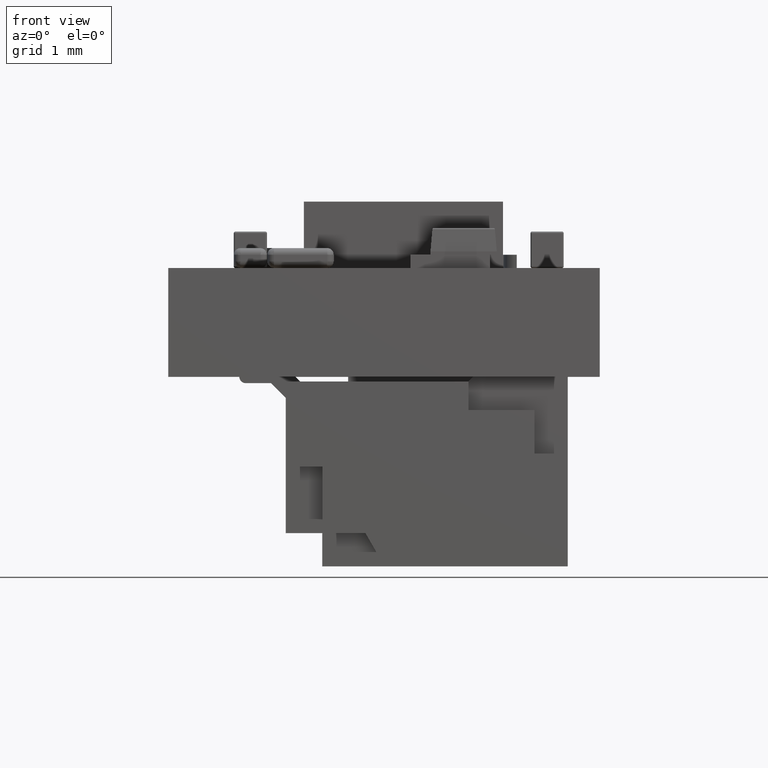
[diagram: clean part render]
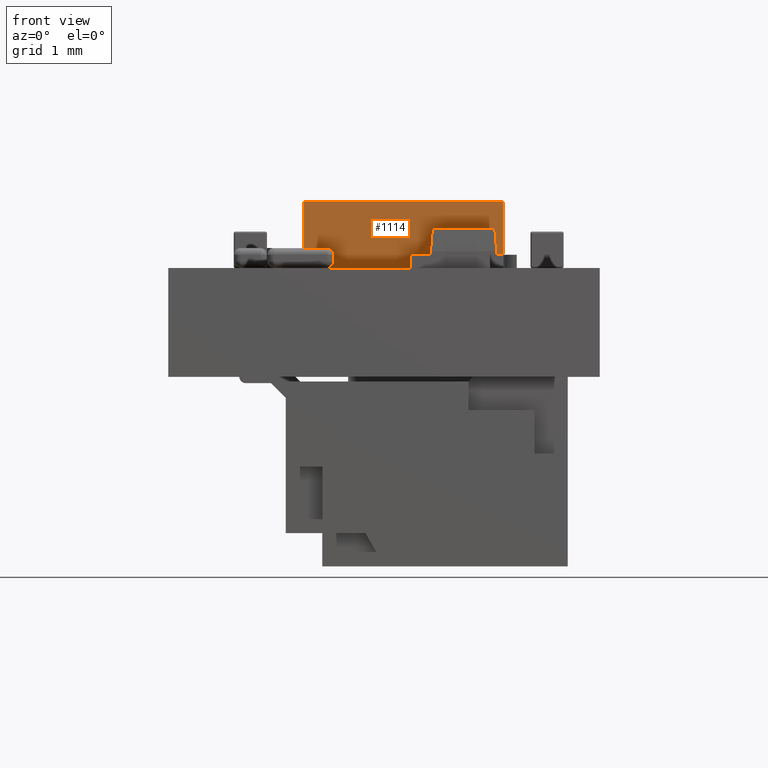
[diagram: same view with one face highlighted and labeled with its STEP entity id]
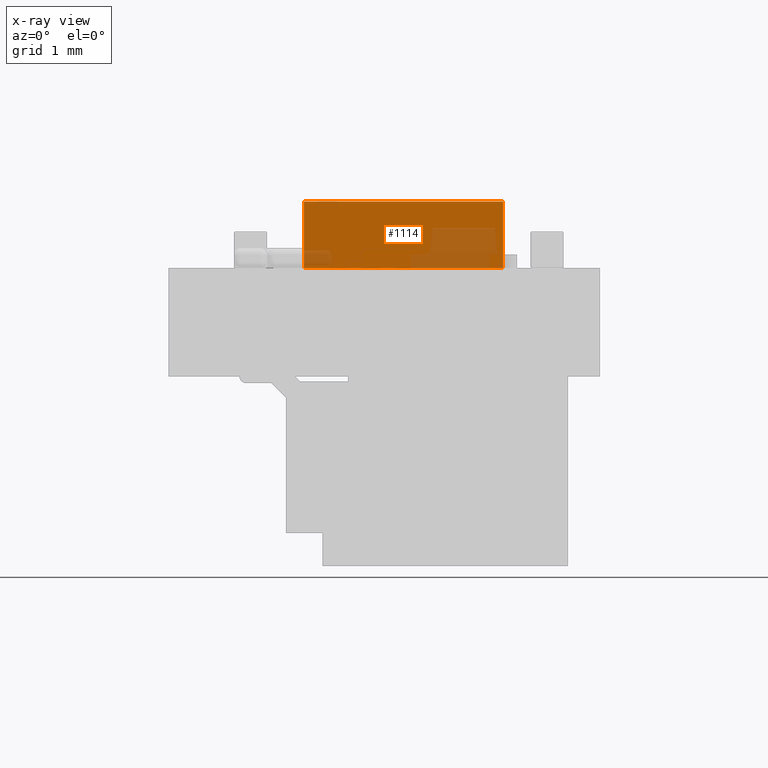
[diagram: x-ray of the same camera — body ghosted, the highlighted face saturated]
A machine part, front view. The second image highlights one B-rep face of the part: STEP entity #1114.
The next image is the same camera in x-ray: the body ghosted, the highlighted face saturated — about 24% of this face is hidden behind the body in this view.
In plain terms, the highlighted planar face has unit normal (0, 1, 0).
Its self-contained STEP definition (entity closure, byte-faithful):
#1017 = VERTEX_POINT('',#1018);
#1018 = CARTESIAN_POINT('',(1.5,0.E+000,1.5));
#1035 = VERTEX_POINT('',#1036);
#1036 = CARTESIAN_POINT('',(1.5,1.,1.5));
#1042 = EDGE_CURVE('',#1035,#1017,#1043,.T.);
#1043 = LINE('',#1044,#1045);
#1044 = CARTESIAN_POINT('',(1.5,1.,1.5));
#1045 = VECTOR('',#1046,1.);
#1046 = DIRECTION('',(-0.E+000,-1.,-0.E+000));
#1088 = VERTEX_POINT('',#1089);
#1089 = CARTESIAN_POINT('',(-1.5,0.E+000,1.5));
#1095 = EDGE_CURVE('',#1096,#1088,#1098,.T.);
#1096 = VERTEX_POINT('',#1097);
#1097 = CARTESIAN_POINT('',(-1.5,1.,1.5));
#1098 = LINE('',#1099,#1100);
#1099 = CARTESIAN_POINT('',(-1.5,1.,1.5));
#1100 = VECTOR('',#1101,1.);
#1101 = DIRECTION('',(-0.E+000,-1.,-0.E+000));
#1114 = ADVANCED_FACE('',(#1115),#1131,.F.);
#1115 = FACE_BOUND('',#1116,.T.);
#1116 = EDGE_LOOP('',(#1117,#1123,#1124,#1130));
#1117 = ORIENTED_EDGE('',*,*,#1118,.T.);
#1118 = EDGE_CURVE('',#1088,#1017,#1119,.T.);
#1119 = LINE('',#1120,#1121);
#1120 = CARTESIAN_POINT('',(-1.5,0.E+000,1.5));
#1121 = VECTOR('',#1122,1.);
#1122 = DIRECTION('',(1.,0.E+000,0.E+000));
#1123 = ORIENTED_EDGE('',*,*,#1042,.F.);
#1124 = ORIENTED_EDGE('',*,*,#1125,.F.);
#1125 = EDGE_CURVE('',#1096,#1035,#1126,.T.);
#1126 = LINE('',#1127,#1128);
#1127 = CARTESIAN_POINT('',(-1.5,1.,1.5));
#1128 = VECTOR('',#1129,1.);
#1129 = DIRECTION('',(1.,0.E+000,0.E+000));
#1130 = ORIENTED_EDGE('',*,*,#1095,.T.);
#1131 = PLANE('',#1132);
#1132 = AXIS2_PLACEMENT_3D('',#1133,#1134,#1135);
#1133 = CARTESIAN_POINT('',(-1.5,1.,1.5));
#1134 = DIRECTION('',(0.E+000,0.E+000,-1.));
#1135 = DIRECTION('',(-1.,0.E+000,-0.E+000));